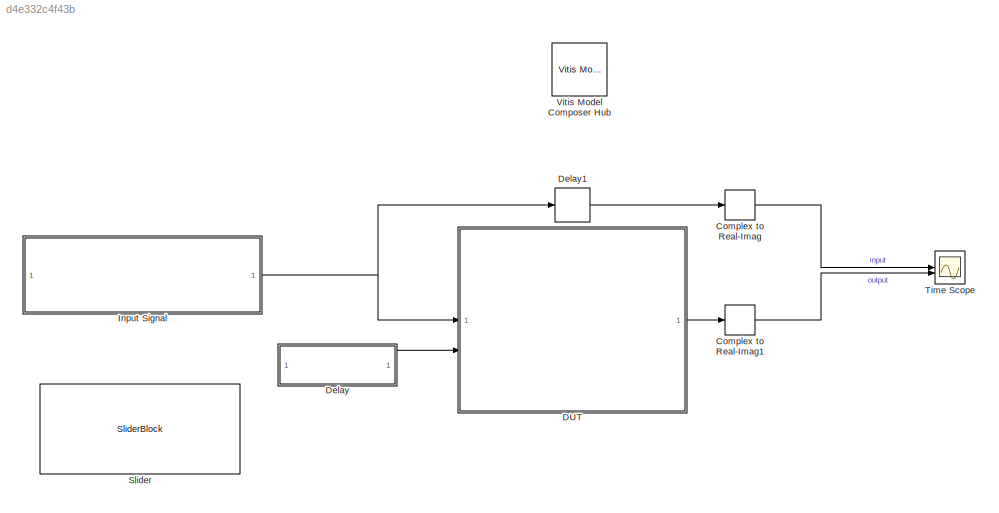
MODEL slx_d4e332c4f43b
KIND model
CONFIG AbsTol = auto
CONFIG EnableMultiTasking = off
CONFIG FixedStep = auto
CONFIG MaxStep = auto
CONFIG MinStep = auto
CONFIG RelTol = 1e-3
CONFIG SampleTimeConstraint = Unconstrained
CONFIG SolverName = VariableStepAuto
CONFIG StartTime = 0.0
CONFIG StopTime = 1024
BLOCK [ComplexToRealImag] Complex to Real-Imag
  Output = Real
BLOCK [ComplexToRealImag] Complex to Real-Imag1
  Output = Real
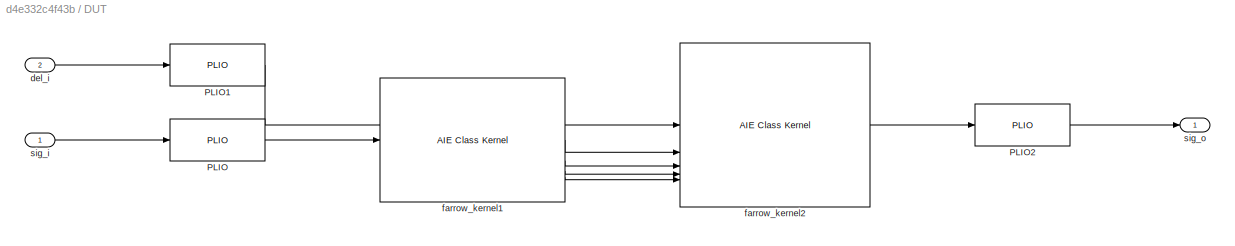
BLOCK [SubSystem] DUT
BLOCK [Reference] DUT/PLIO  REF=aieBasic/PLIO
  SourceBlock = aieBasic/PLIO
  SourceType = PLIO
BLOCK [Reference] DUT/PLIO1  REF=aieBasic/PLIO
  SourceBlock = aieBasic/PLIO
  SourceType = PLIO
BLOCK [Reference] DUT/PLIO2  REF=aieBasic/PLIO
  SourceBlock = aieBasic/PLIO
  SourceType = PLIO
BLOCK [Inport] DUT/del_i
  Port = 2
BLOCK [Reference] DUT/farrow_kernel1  REF=aieBasic/AIE Class Kernel
  SourceBlock = aieBasic/AIE Class Kernel
  SourceType = AIE Class Kernel Function
BLOCK [Reference] DUT/farrow_kernel2  REF=aieBasic/AIE Class Kernel
  SourceBlock = aieBasic/AIE Class Kernel
  SourceType = AIE Class Kernel Function
BLOCK [Inport] DUT/sig_i
BLOCK [Outport] DUT/sig_o
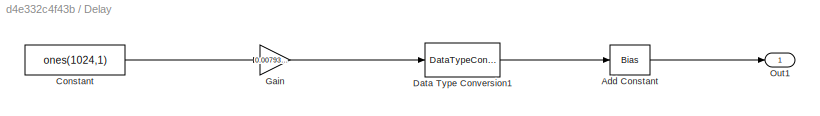
BLOCK [SubSystem] Delay
BLOCK [Bias] Delay/Add Constant
  Bias = 2^16
  SaturateOnIntegerOverflow = off
BLOCK [Constant] Delay/Constant
  OutDataTypeStr = fixdt(1,16,14)
  SampleTime = 1024
  Value = ones(1024,1)
BLOCK [DataTypeConversion] Delay/Data Type Conversion1
  ConvertRealWorld = Stored Integer (SI)
  OutDataTypeStr = int32
  RndMeth = Floor
  SaturateOnIntegerOverflow = off
BLOCK [Gain] Delay/Gain
  Gain = 0.007936507936507908
  OutDataTypeStr = Inherit: Same as input
  ParamDataTypeStr = Inherit: Same as input
BLOCK [Outport] Delay/Out1
BLOCK [Delay] Delay1
  DelayLength = 3
  InputPortMap = u0
  InputProcessing = Columns as channels (frame based)
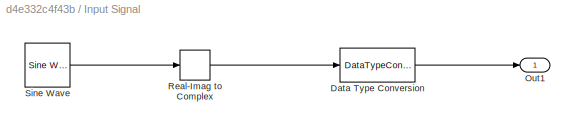
BLOCK [SubSystem] Input Signal
BLOCK [DataTypeConversion] Input Signal/Data Type Conversion
  OutDataTypeStr = int16
  RndMeth = Floor
  SaturateOnIntegerOverflow = off
BLOCK [Outport] Input Signal/Out1
BLOCK [RealImagToComplex] Input Signal/Real-Imag to Complex
  Input = Real
BLOCK [Reference] Input Signal/Sine Wave  REF=dspsrcs4/Sine Wave
  SourceBlock = dspsrcs4/Sine Wave
  SourceType = Sine Wave
BLOCK [SliderBlock] Slider
  LabelPosition = Hide
  ScaleMax = 0.5
  ScaleMin = -0.5
BLOCK [Scope] Time Scope
  DefaultConfigurationName = spbscopes.TimeScopeBlockCfg
  Floating = off
  NumInputPorts = 2
  ScopeSpecificationString = spbscopes.TimeScopeBlockCfg('CurrentConfiguration', extmgr.ConfigurationSet(extmgr.Configuration('Core','General UI',true,'DisplayFullSourceName',false,'ShowMainToolbar',true),extmgr.Configuration('Sources','WiredSimulink',true,'DataLogging',false,'DataLoggingVariableName','ScopeData','DataLoggingLimitDataPoints',false,'DataLoggingMaxPoints','5000','DataLoggingDecimateData',false,'DataLoggingDecim...<+2034ch>
  UserDataPersistent = on
BLOCK [Reference] Vitis Model Composer Hub  REF=vmcUtilities/Vitis Model Composer Hub
  SourceBlock = vmcUtilities/Vitis Model Composer Hub
  SourceType = VMC Hub
  Tag = genX
  UserDataPersistent = on
LINE Complex to Real-Imag1:1 -> Time Scope:2
LINE Complex to Real-Imag:1 -> Time Scope:1
LINE DUT/PLIO1:1 -> DUT/farrow_kernel2:1
LINE DUT/PLIO2:1 -> DUT/sig_o:1
LINE DUT/PLIO:1 -> DUT/farrow_kernel1:1
LINE DUT/del_i:1 -> DUT/PLIO1:1
LINE DUT/farrow_kernel1:1 -> DUT/farrow_kernel2:2
LINE DUT/farrow_kernel1:2 -> DUT/farrow_kernel2:3
LINE DUT/farrow_kernel1:3 -> DUT/farrow_kernel2:4
LINE DUT/farrow_kernel1:4 -> DUT/farrow_kernel2:5
LINE DUT/farrow_kernel2:1 -> DUT/PLIO2:1
LINE DUT/sig_i:1 -> DUT/PLIO:1
LINE DUT:1 -> Complex to Real-Imag1:1
LINE Delay/Add Constant:1 -> Delay/Out1:1
LINE Delay/Constant:1 -> Delay/Gain:1
LINE Delay/Data Type Conversion1:1 -> Delay/Add Constant:1
LINE Delay/Gain:1 -> Delay/Data Type Conversion1:1
LINE Delay1:1 -> Complex to Real-Imag:1
LINE Delay:1 -> DUT:2
LINE Input Signal/Data Type Conversion:1 -> Input Signal/Out1:1
LINE Input Signal/Real-Imag to Complex:1 -> Input Signal/Data Type Conversion:1
LINE Input Signal/Sine Wave:1 -> Input Signal/Real-Imag to Complex:1
NET Input Signal:1 -> DUT:1, Delay1:1
note: NET lines group one-source signal fan-out (src -> all destinations, sorted); 1:1 wires keep LINE
